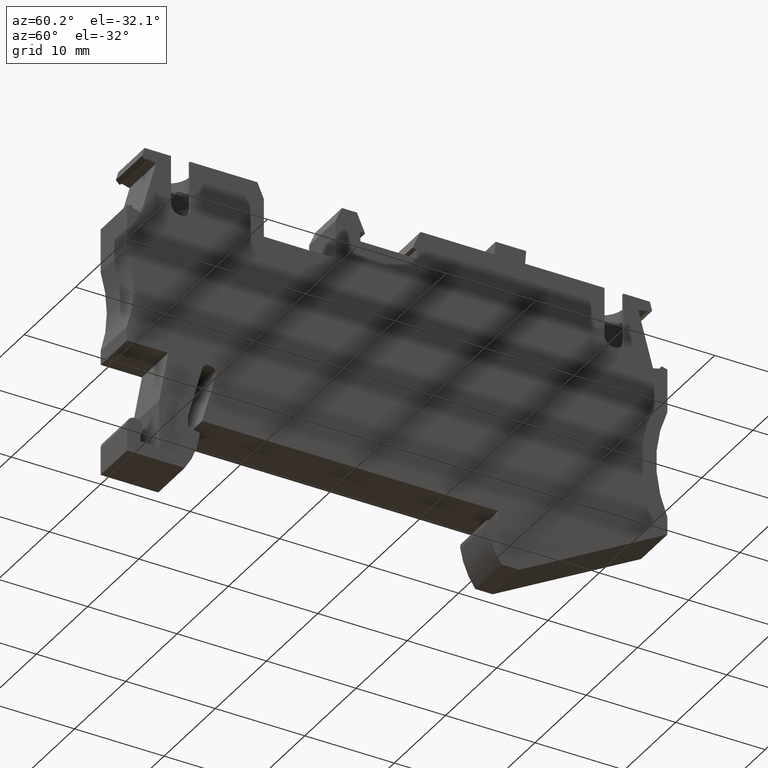
[diagram: clean part render]
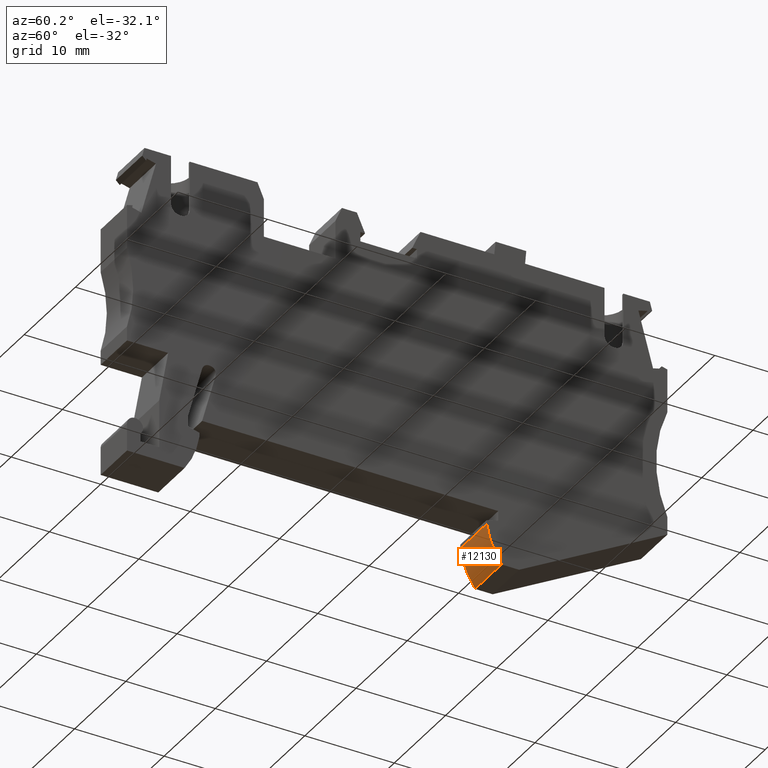
[diagram: same view with one face highlighted and labeled with its STEP entity id]
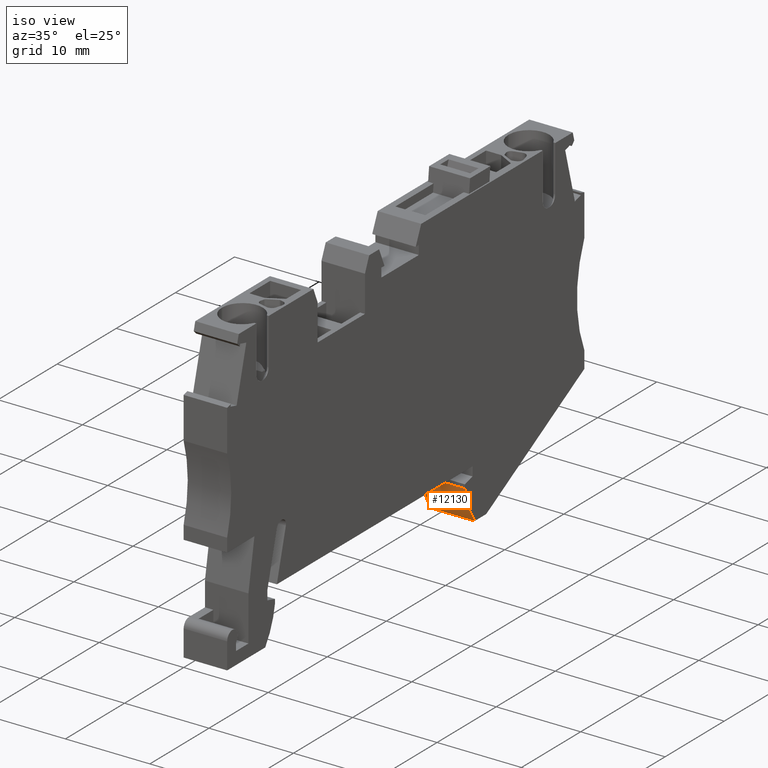
[diagram: same view with one face highlighted and labeled with its STEP entity id]
A machine part, auxiliary view. The second image highlights one B-rep face of the part: STEP entity #12130.
A second angle (iso view) of the same face is appended — the face is thin or edge-on in the first view.
In plain terms, the highlighted cylindrical surface (partial cylindrical patch) has radius 9.5 mm, axis along (-1, -0, -0).
Its self-contained STEP definition (entity closure, byte-faithful):
#11530=CARTESIAN_POINT('',(17.8321672216751,-40.3000000000019,
53.669999999996));
#11540=VERTEX_POINT('',#11530);
#11570=CARTESIAN_POINT('',(17.8321672216751,-40.300000000002,48.52));
#11580=DIRECTION('',(0.,0.,-1.));
#11590=VECTOR('',#11580,1.);
#11600=LINE('',#11570,#11590);
#11610=CARTESIAN_POINT('',(17.8321672216751,-40.300000000002,
48.5199999999973));
#11620=VERTEX_POINT('',#11610);
#11630=EDGE_CURVE('',#11540,#11620,#11600,.T.);
#11810=CARTESIAN_POINT('',(27.2261399010515,-38.8846282117038,48.52));
#11820=DIRECTION('',(0.,0.,-1.));
#11830=DIRECTION('',(-1.,0.,0.));
#11840=AXIS2_PLACEMENT_3D('',#11810,#11820,#11830);
#11850=CYLINDRICAL_SURFACE('',#11840,9.499999999999);
#11860=CARTESIAN_POINT('',(27.2261399010515,-38.8846282117038,
48.5199999999973));
#11870=DIRECTION('',(0.,0.,-1.));
#11880=DIRECTION('',(-1.,0.,0.));
#11890=AXIS2_PLACEMENT_3D('',#11860,#11870,#11880);
#11900=CIRCLE('',#11890,9.499999999999);
#11910=CARTESIAN_POINT('',(19.4911108748079,-44.4000000000014,
48.5199999999973));
#11920=VERTEX_POINT('',#11910);
#11930=EDGE_CURVE('',#11920,#11620,#11900,.T.);
#11940=ORIENTED_EDGE('',*,*,#11930,.F.);
#11950=ORIENTED_EDGE('',*,*,#11630,.T.);
#11960=CARTESIAN_POINT('',(27.2261399010515,-38.8846282117038,
53.6699999999942));
#11970=DIRECTION('',(0.,0.,-1.));
#11980=DIRECTION('',(-1.,0.,0.));
#11990=AXIS2_PLACEMENT_3D('',#11960,#11970,#11980);
#12000=CIRCLE('',#11990,9.499999999999);
#12010=CARTESIAN_POINT('',(19.4911108748079,-44.4000000000014,
53.6699999999939));
#12020=VERTEX_POINT('',#12010);
#12030=EDGE_CURVE('',#12020,#11540,#12000,.T.);
#12040=ORIENTED_EDGE('',*,*,#12030,.T.);
#12050=CARTESIAN_POINT('',(19.4911108748078,-44.4000000000014,48.52));
#12060=DIRECTION('',(0.,0.,-1.));
#12070=VECTOR('',#12060,1.);
#12080=LINE('',#12050,#12070);
#12090=EDGE_CURVE('',#12020,#11920,#12080,.T.);
#12100=ORIENTED_EDGE('',*,*,#12090,.F.);
#12110=EDGE_LOOP('',(#12100,#12040,#11950,#11940));
#12120=FACE_OUTER_BOUND('',#12110,.T.);
#12130=ADVANCED_FACE('',(#12120),#11850,.T.);